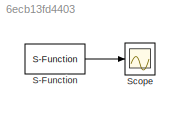
MODEL slx_6ecb13fd4403
KIND model
BLOCK [S-Function] S-Function
  EnableBusSupport = off
  FunctionName = drop
  Parameters = 30,70,50,50
  Ports = [0, 1]
BLOCK [Scope] Scope
  Floating = off
  NumInputPorts = 1
  Ports = [1]
  ShowLegends = off
LINE S-Function:1 -> Scope:1
